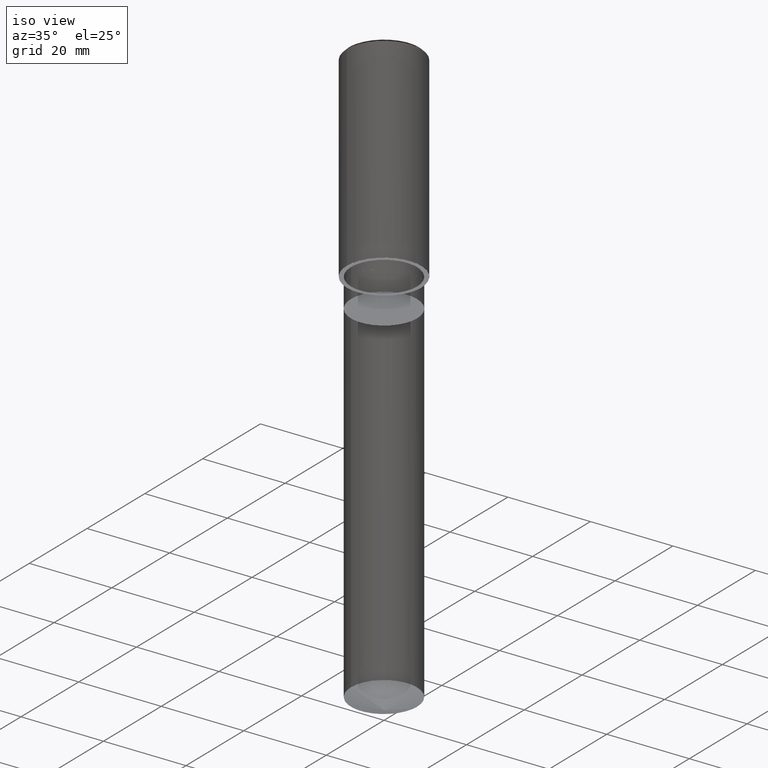
[diagram: clean part render]
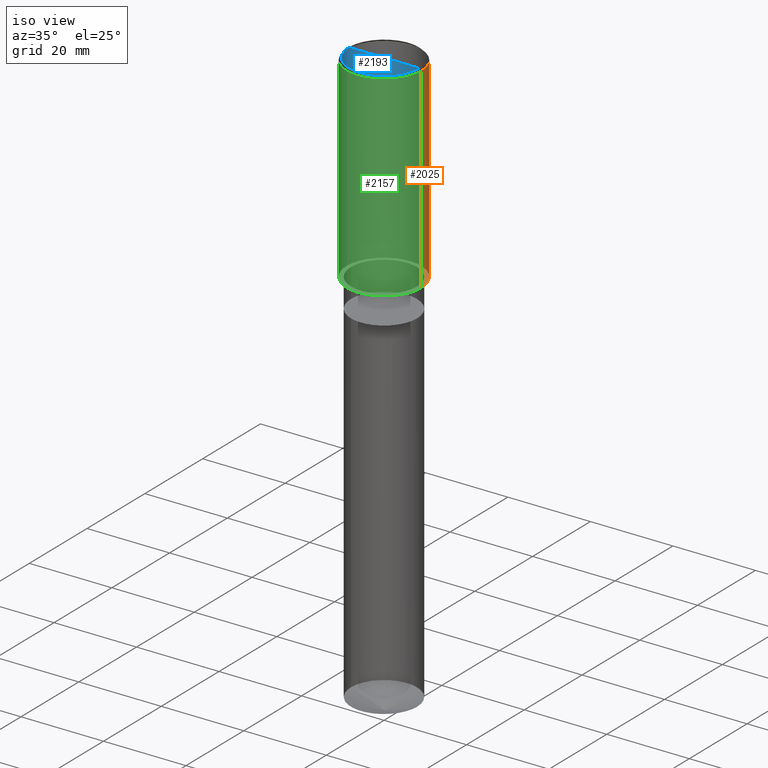
[diagram: same view with three faces highlighted in distinct colors, each labeled with its STEP entity id]
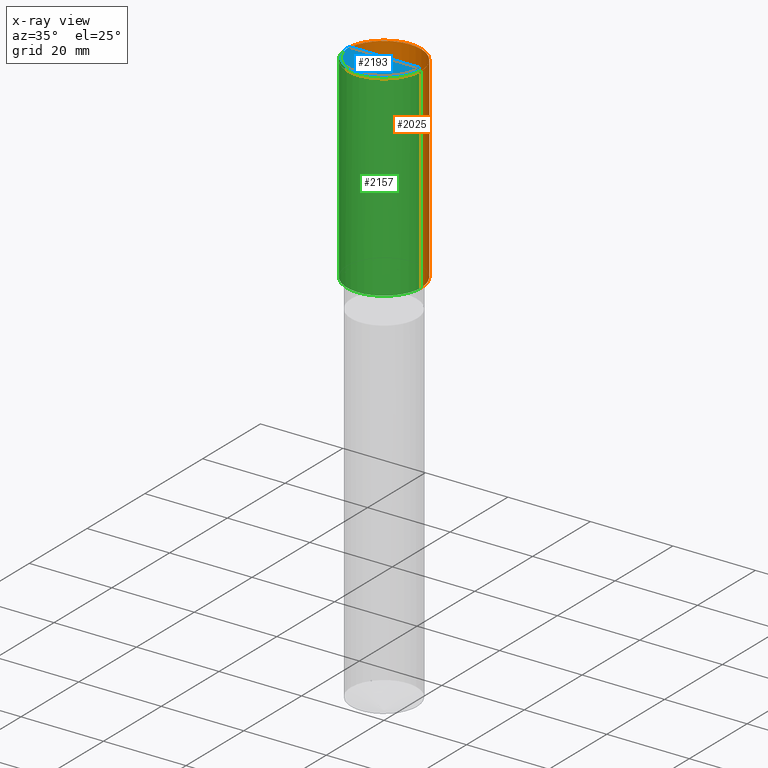
[diagram: x-ray of the same camera — body ghosted, the three highlighted faces saturated]
A machine part, iso view with three faces highlighted in distinct colors.
The next image is the same camera in x-ray (body ghosted, the three faces saturated) — at least one of them is partly hidden behind the body in this view.
Their STEP definitions:

[orange] entity #2025 — the highlighted face is a freeform B-spline surface patch.
#1786=CARTESIAN_POINT('',(9.0,0.0,0.0));
#1787=CARTESIAN_POINT('',(9.0,9.0,0.0));
#1788=CARTESIAN_POINT('',(0.0,9.0,0.0));
#1789=CARTESIAN_POINT('',(-9.0,9.0,0.0));
#1790=CARTESIAN_POINT('',(-9.0,0.0,0.0));
#1791=CARTESIAN_POINT('',(9.0,0.0,47.5));
#1792=CARTESIAN_POINT('',(9.0,9.0,47.5));
#1793=CARTESIAN_POINT('',(0.0,9.0,47.5));
#1794=CARTESIAN_POINT('',(-9.0,9.0,47.5));
#1795=CARTESIAN_POINT('',(-9.0,0.0,47.5));
#2006=(
BOUNDED_SURFACE()
B_SPLINE_SURFACE(1,2,(
(#1786,#1787,#1788,#1789,#1790),
(#1791,#1792,#1793,#1794,#1795)
), .UNSPECIFIED.,.F.,.F.,.F.)
B_SPLINE_SURFACE_WITH_KNOTS((2,2),(3,2,3),(
0.0,1.0),(
0.0,0.5,1.0), .UNSPECIFIED.)
GEOMETRIC_REPRESENTATION_ITEM()
RATIONAL_B_SPLINE_SURFACE(((1.0,0.707106781187,1.0,0.707106781187,1.0),
(1.0,0.707106781187,1.0,0.707106781187,1.0)
))
REPRESENTATION_ITEM('')
SURFACE()
);
#2007=(
BOUNDED_CURVE()
B_SPLINE_CURVE(2,(#1790,#1789,#1788,#1787,#1786),.UNSPECIFIED.,.F.,.F.)
B_SPLINE_CURVE_WITH_KNOTS((3,2,3),
(0.0,0.5,1.0),.UNSPECIFIED.)
CURVE()
GEOMETRIC_REPRESENTATION_ITEM()
RATIONAL_B_SPLINE_CURVE((1.0,0.707106781187,1.0,0.707106781187,1.0))
REPRESENTATION_ITEM('')
);
#2008=(
BOUNDED_CURVE()
B_SPLINE_CURVE(1,(#1786,#1791),.UNSPECIFIED.,.F.,.F.)
B_SPLINE_CURVE_WITH_KNOTS((2,2),
(0.0,1.0),.UNSPECIFIED.)
CURVE()
GEOMETRIC_REPRESENTATION_ITEM()
RATIONAL_B_SPLINE_CURVE((1.0,1.0))
REPRESENTATION_ITEM('')
);
#2009=(
BOUNDED_CURVE()
B_SPLINE_CURVE(2,(#1791,#1792,#1793,#1794,#1795),.UNSPECIFIED.,.F.,.F.)
B_SPLINE_CURVE_WITH_KNOTS((3,2,3),
(0.0,0.5,1.0),.UNSPECIFIED.)
CURVE()
GEOMETRIC_REPRESENTATION_ITEM()
RATIONAL_B_SPLINE_CURVE((1.0,0.707106781187,1.0,0.707106781187,1.0))
REPRESENTATION_ITEM('')
);
#2010=(
BOUNDED_CURVE()
B_SPLINE_CURVE(1,(#1795,#1790),.UNSPECIFIED.,.F.,.F.)
B_SPLINE_CURVE_WITH_KNOTS((2,2),
(0.0,1.0),.UNSPECIFIED.)
CURVE()
GEOMETRIC_REPRESENTATION_ITEM()
RATIONAL_B_SPLINE_CURVE((1.0,1.0))
REPRESENTATION_ITEM('')
);
#2011=VERTEX_POINT('',#1786);
#2012=VERTEX_POINT('',#1790);
#2013=VERTEX_POINT('',#1791);
#2014=VERTEX_POINT('',#1795);
#2015=EDGE_CURVE('',#2012,#2011,#2007,.T.);
#2016=EDGE_CURVE('',#2011,#2013,#2008,.T.);
#2017=EDGE_CURVE('',#2013,#2014,#2009,.T.);
#2018=EDGE_CURVE('',#2014,#2012,#2010,.T.);
#2019=ORIENTED_EDGE('',*,*,#2015,.T.);
#2020=ORIENTED_EDGE('',*,*,#2016,.T.);
#2021=ORIENTED_EDGE('',*,*,#2017,.T.);
#2022=ORIENTED_EDGE('',*,*,#2018,.T.);
#2023=EDGE_LOOP('',(#2019,#2020,#2021,#2022));
#2024=FACE_OUTER_BOUND('',#2023,.T.);
#2025=ADVANCED_FACE('',(#2024),#2006,.T.);

[blue] entity #2193 — the highlighted face is a freeform B-spline surface patch.
#1796=CARTESIAN_POINT('',(8.5,0.0,48.0));
#1800=CARTESIAN_POINT('',(-8.5,0.0,48.0));
#1801=CARTESIAN_POINT('',(0.0,0.0,48.0));
#1814=CARTESIAN_POINT('',(-8.5,-8.5,48.0));
#1815=CARTESIAN_POINT('',(0.0,-8.5,48.0));
#1816=CARTESIAN_POINT('',(8.5,-8.5,48.0));
#2178=(
BOUNDED_SURFACE()
B_SPLINE_SURFACE(1,2,(
(#1800,#1814,#1815,#1816,#1796),
(#1801,#1801,#1801,#1801,#1801)
), .UNSPECIFIED.,.F.,.F.,.F.)
B_SPLINE_SURFACE_WITH_KNOTS((2,2),(3,2,3),(
0.0,1.0),(
0.0,0.5,1.0), .UNSPECIFIED.)
GEOMETRIC_REPRESENTATION_ITEM()
RATIONAL_B_SPLINE_SURFACE(((1.0,0.707106781187,1.0,0.707106781187,1.0),
(1.0,0.707106781187,1.0,0.707106781187,1.0)
))
REPRESENTATION_ITEM('')
SURFACE()
);
#2179=(
BOUNDED_CURVE()
B_SPLINE_CURVE(2,(#1796,#1816,#1815,#1814,#1800),.UNSPECIFIED.,.F.,.F.)
B_SPLINE_CURVE_WITH_KNOTS((3,2,3),
(0.0,0.5,1.0),.UNSPECIFIED.)
CURVE()
GEOMETRIC_REPRESENTATION_ITEM()
RATIONAL_B_SPLINE_CURVE((1.0,0.707106781187,1.0,0.707106781187,1.0))
REPRESENTATION_ITEM('')
);
#2180=(
BOUNDED_CURVE()
B_SPLINE_CURVE(1,(#1800,#1801),.UNSPECIFIED.,.F.,.F.)
B_SPLINE_CURVE_WITH_KNOTS((2,2),
(0.0,1.0),.UNSPECIFIED.)
CURVE()
GEOMETRIC_REPRESENTATION_ITEM()
RATIONAL_B_SPLINE_CURVE((1.0,1.0))
REPRESENTATION_ITEM('')
);
#2181=(
BOUNDED_CURVE()
B_SPLINE_CURVE(1,(#1801,#1796),.UNSPECIFIED.,.F.,.F.)
B_SPLINE_CURVE_WITH_KNOTS((2,2),
(0.0,1.0),.UNSPECIFIED.)
CURVE()
GEOMETRIC_REPRESENTATION_ITEM()
RATIONAL_B_SPLINE_CURVE((1.0,1.0))
REPRESENTATION_ITEM('')
);
#2182=VERTEX_POINT('',#1796);
#2183=VERTEX_POINT('',#1800);
#2184=VERTEX_POINT('',#1801);
#2185=EDGE_CURVE('',#2182,#2183,#2179,.T.);
#2186=EDGE_CURVE('',#2183,#2184,#2180,.T.);
#2187=EDGE_CURVE('',#2184,#2182,#2181,.T.);
#2188=ORIENTED_EDGE('',*,*,#2185,.T.);
#2189=ORIENTED_EDGE('',*,*,#2186,.T.);
#2190=ORIENTED_EDGE('',*,*,#2187,.T.);
#2191=EDGE_LOOP('',(#2188,#2189,#2190));
#2192=FACE_OUTER_BOUND('',#2191,.T.);
#2193=ADVANCED_FACE('',(#2192),#2178,.T.);

[green] entity #2157 — the highlighted face is a freeform B-spline surface patch.
#1786=CARTESIAN_POINT('',(9.0,0.0,0.0));
#1790=CARTESIAN_POINT('',(-9.0,0.0,0.0));
#1791=CARTESIAN_POINT('',(9.0,0.0,47.5));
#1795=CARTESIAN_POINT('',(-9.0,0.0,47.5));
#1808=CARTESIAN_POINT('',(-9.0,-9.0,0.0));
#1809=CARTESIAN_POINT('',(0.0,-9.0,0.0));
#1810=CARTESIAN_POINT('',(9.0,-9.0,0.0));
#1811=CARTESIAN_POINT('',(-9.0,-9.0,47.5));
#1812=CARTESIAN_POINT('',(0.0,-9.0,47.5));
#1813=CARTESIAN_POINT('',(9.0,-9.0,47.5));
#2138=(
BOUNDED_SURFACE()
B_SPLINE_SURFACE(1,2,(
(#1790,#1808,#1809,#1810,#1786),
(#1795,#1811,#1812,#1813,#1791)
), .UNSPECIFIED.,.F.,.F.,.F.)
B_SPLINE_SURFACE_WITH_KNOTS((2,2),(3,2,3),(
0.0,1.0),(
0.0,0.5,1.0), .UNSPECIFIED.)
GEOMETRIC_REPRESENTATION_ITEM()
RATIONAL_B_SPLINE_SURFACE(((1.0,0.707106781187,1.0,0.707106781187,1.0),
(1.0,0.707106781187,1.0,0.707106781187,1.0)
))
REPRESENTATION_ITEM('')
SURFACE()
);
#2139=(
BOUNDED_CURVE()
B_SPLINE_CURVE(2,(#1786,#1810,#1809,#1808,#1790),.UNSPECIFIED.,.F.,.F.)
B_SPLINE_CURVE_WITH_KNOTS((3,2,3),
(0.0,0.5,1.0),.UNSPECIFIED.)
CURVE()
GEOMETRIC_REPRESENTATION_ITEM()
RATIONAL_B_SPLINE_CURVE((1.0,0.707106781187,1.0,0.707106781187,1.0))
REPRESENTATION_ITEM('')
);
#2140=(
BOUNDED_CURVE()
B_SPLINE_CURVE(1,(#1790,#1795),.UNSPECIFIED.,.F.,.F.)
B_SPLINE_CURVE_WITH_KNOTS((2,2),
(0.0,1.0),.UNSPECIFIED.)
CURVE()
GEOMETRIC_REPRESENTATION_ITEM()
RATIONAL_B_SPLINE_CURVE((1.0,1.0))
REPRESENTATION_ITEM('')
);
#2141=(
BOUNDED_CURVE()
B_SPLINE_CURVE(2,(#1795,#1811,#1812,#1813,#1791),.UNSPECIFIED.,.F.,.F.)
B_SPLINE_CURVE_WITH_KNOTS((3,2,3),
(0.0,0.5,1.0),.UNSPECIFIED.)
CURVE()
GEOMETRIC_REPRESENTATION_ITEM()
RATIONAL_B_SPLINE_CURVE((1.0,0.707106781187,1.0,0.707106781187,1.0))
REPRESENTATION_ITEM('')
);
#2142=(
BOUNDED_CURVE()
B_SPLINE_CURVE(1,(#1791,#1786),.UNSPECIFIED.,.F.,.F.)
B_SPLINE_CURVE_WITH_KNOTS((2,2),
(0.0,1.0),.UNSPECIFIED.)
CURVE()
GEOMETRIC_REPRESENTATION_ITEM()
RATIONAL_B_SPLINE_CURVE((1.0,1.0))
REPRESENTATION_ITEM('')
);
#2143=VERTEX_POINT('',#1786);
#2144=VERTEX_POINT('',#1790);
#2145=VERTEX_POINT('',#1791);
#2146=VERTEX_POINT('',#1795);
#2147=EDGE_CURVE('',#2143,#2144,#2139,.T.);
#2148=EDGE_CURVE('',#2144,#2146,#2140,.T.);
#2149=EDGE_CURVE('',#2146,#2145,#2141,.T.);
#2150=EDGE_CURVE('',#2145,#2143,#2142,.T.);
#2151=ORIENTED_EDGE('',*,*,#2147,.T.);
#2152=ORIENTED_EDGE('',*,*,#2148,.T.);
#2153=ORIENTED_EDGE('',*,*,#2149,.T.);
#2154=ORIENTED_EDGE('',*,*,#2150,.T.);
#2155=EDGE_LOOP('',(#2151,#2152,#2153,#2154));
#2156=FACE_OUTER_BOUND('',#2155,.T.);
#2157=ADVANCED_FACE('',(#2156),#2138,.T.);